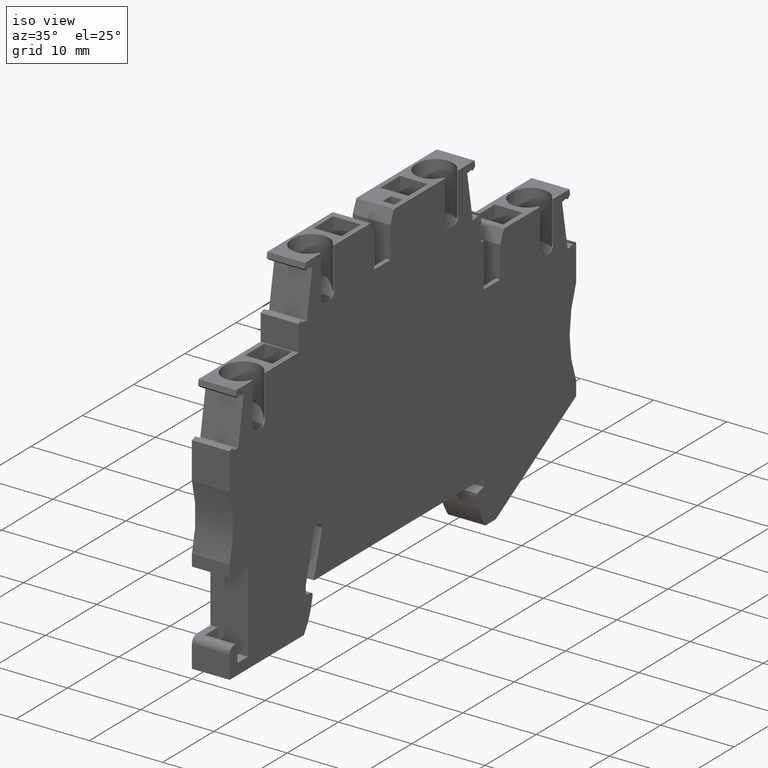
[diagram: clean part render]
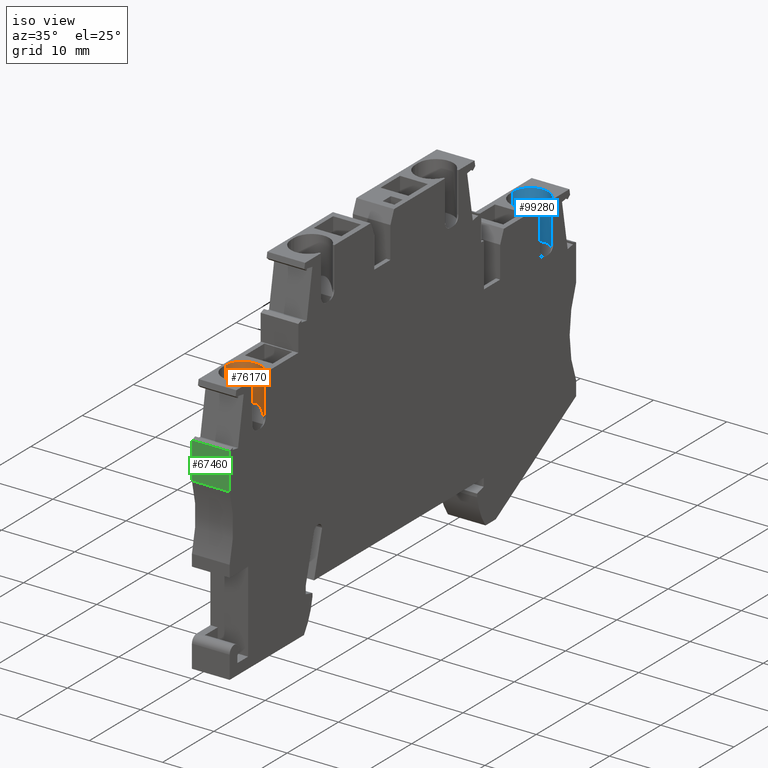
[diagram: same view with three faces highlighted in distinct colors, each labeled with its STEP entity id]
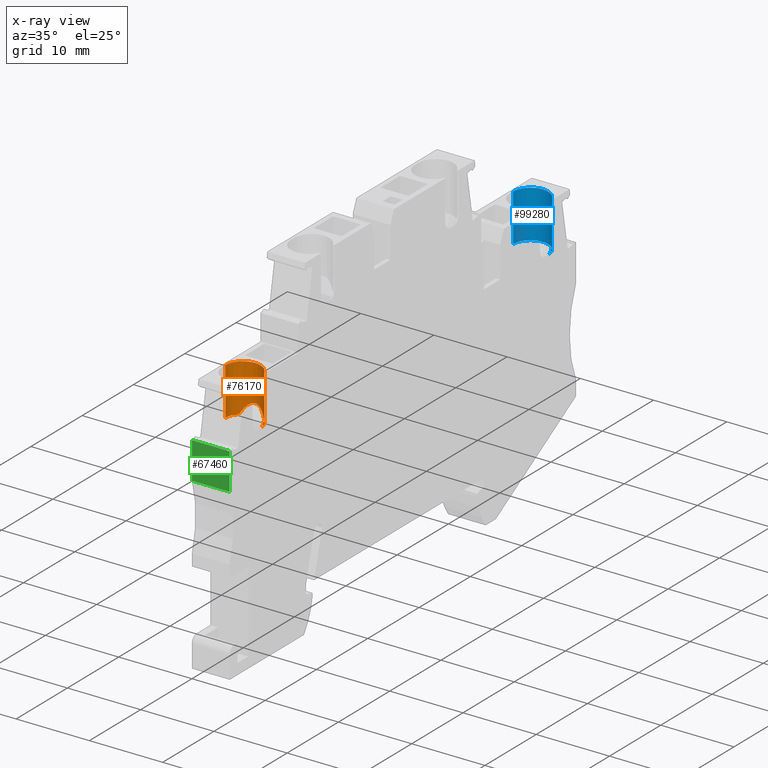
[diagram: x-ray of the same camera — body ghosted, the three highlighted faces saturated]
A machine part, iso view with three faces highlighted in distinct colors.
The next image is the same camera in x-ray (body ghosted, the three faces saturated) — at least one of them is partly hidden behind the body in this view.
Their STEP definitions:

[orange] entity #76170 — the highlighted cylindrical surface (edge-blend (fillet) strip) has radius 2.4 mm, axis along (-0, -0, -1).
#68870=CARTESIAN_POINT('',(142.353036999972,31.7467138221622,
53.4517424229271));
#68880=VERTEX_POINT('',#68870);
#68910=CARTESIAN_POINT('',(141.353036999972,31.7467138221623,51.27));
#68920=DIRECTION('',(1.17239551400417E-13,1.,0.));
#68930=DIRECTION('',(-1.,1.17239551400417E-13,0.));
#68940=AXIS2_PLACEMENT_3D('',#68910,#68920,#68930);
#68950=CIRCLE('',#68940,2.4);
#68960=CARTESIAN_POINT('',(141.353036999972,31.7467138221623,48.87));
#68970=VERTEX_POINT('',#68960);
#68980=EDGE_CURVE('',#68880,#68970,#68950,.T.);
#74540=CARTESIAN_POINT('',(141.353036999973,33.9010178221633,48.87));
#74550=DIRECTION('',(-1.17239551400417E-13,-1.,-1.38777878145543E-17));
#74560=VECTOR('',#74550,1.);
#74570=LINE('',#74540,#74560);
#74580=CARTESIAN_POINT('',(141.353036999972,25.2467138221637,48.87));
#74590=VERTEX_POINT('',#74580);
#74600=EDGE_CURVE('',#68970,#74590,#74570,.T.);
#74800=CARTESIAN_POINT('',(141.353036999972,33.9010178221633,51.27));
#74810=DIRECTION('',(-1.17239551400417E-13,-1.,0.));
#74820=DIRECTION('',(-1.,1.17239551400417E-13,0.));
#74830=AXIS2_PLACEMENT_3D('',#74800,#74810,#74820);
#74840=CYLINDRICAL_SURFACE('',#74830,2.4);
#74850=CARTESIAN_POINT('',(141.353036999972,25.2467138221647,
51.2699999999998));
#74860=DIRECTION('',(-8.67361737981714E-16,-1.,-1.38777878079272E-17));
#74870=DIRECTION('',(-1.,8.67361737981714E-16,1.20370621524251E-32));
#74880=AXIS2_PLACEMENT_3D('',#74850,#74860,#74870);
#74890=CIRCLE('',#74880,2.4000000000003);
#74900=CARTESIAN_POINT('',(143.040922309257,25.2467138221647,
52.97617794579));
#74910=VERTEX_POINT('',#74900);
#74920=CARTESIAN_POINT('',(141.353036999972,25.2467138221637,
53.6699999999996));
#74930=VERTEX_POINT('',#74920);
#74940=EDGE_CURVE('',#74910,#74930,#74890,.T.);
#74950=ORIENTED_EDGE('',*,*,#74940,.T.);
#74960=CARTESIAN_POINT('',(141.353036999972,21.6270320953753,
51.2699999999996));
#74970=DIRECTION('',(0.906307787036651,-0.422618261740698,0.));
#74980=DIRECTION('',(-0.422618261740698,-0.906307787036651,
-3.0624889262629E-17));
#74990=AXIS2_PLACEMENT_3D('',#74960,#74970,#74980);
#75000=ELLIPSE('',#74990,5.67888379956604,2.4);
#75010=CARTESIAN_POINT('',(143.040922309257,25.2467138221647,
49.5638220542094));
#75020=VERTEX_POINT('',#75010);
#75030=EDGE_CURVE('',#75020,#74910,#75000,.T.);
#75040=ORIENTED_EDGE('',*,*,#75030,.T.);
#75050=CARTESIAN_POINT('',(141.353036999972,25.2467138221647,
51.2699999999998));
#75060=DIRECTION('',(-8.67361737981714E-16,-1.,-1.38777878079272E-17));
#75070=DIRECTION('',(-1.,8.67361737981714E-16,1.20370621524251E-32));
#75080=AXIS2_PLACEMENT_3D('',#75050,#75060,#75070);
#75090=CIRCLE('',#75080,2.4000000000003);
#75100=EDGE_CURVE('',#74590,#75020,#75090,.T.);
#75110=ORIENTED_EDGE('',*,*,#75100,.T.);
#75120=ORIENTED_EDGE('',*,*,#74600,.T.);
#75130=ORIENTED_EDGE('',*,*,#68980,.T.);
#75140=CARTESIAN_POINT('',(142.353036999972,33.9010178221633,
53.4517424229268));
#75150=DIRECTION('',(-1.73472347596343E-15,-1.,-2.77555756158543E-17));
#75160=VECTOR('',#75150,1.);
#75170=LINE('',#75140,#75160);
#75180=CARTESIAN_POINT('',(142.353036999972,26.2467138221637,
53.4517424229268));
#75190=VERTEX_POINT('',#75180);
#75200=EDGE_CURVE('',#68880,#75190,#75170,.T.);
#75210=ORIENTED_EDGE('',*,*,#75200,.F.);
#75220=CARTESIAN_POINT('',(141.353036999971,26.2467138221637,53.67));
#75230=DIRECTION('',(0.,0.,1.));
#75240=DIRECTION('',(1.,0.,0.));
#75250=AXIS2_PLACEMENT_3D('',#75220,#75230,#75240);
#75260=CYLINDRICAL_SURFACE('',#75250,1.);
#75270=CARTESIAN_POINT('',(141.353036999972,33.9010178221633,
51.2699999999996));
#75280=DIRECTION('',(-1.73472347596343E-15,-1.,-2.77555756158543E-17));
#75290=DIRECTION('',(-1.,1.73472347596345E-15,-1.15490950136632E-13));
#75300=AXIS2_PLACEMENT_3D('',#75270,#75280,#75290);
#75310=CYLINDRICAL_SURFACE('',#75300,2.4);
#75320=CARTESIAN_POINT('',(141.353036999875,25.2467138221637,
53.6699999999996));
#75330=CARTESIAN_POINT('',(141.369558434636,25.2467138221621,
53.6700000000003));
#75340=CARTESIAN_POINT('',(141.386071491449,25.24712358397,
53.6698291800368));
#75350=CARTESIAN_POINT('',(141.402541328303,25.2479399130749,
53.6694893876562));
#75360=CARTESIAN_POINT('',(141.419010878255,25.2487562279595,
53.6691496011948));
#75370=CARTESIAN_POINT('',(141.435477242535,25.2499810673953,
53.6686400269279));
#75380=CARTESIAN_POINT('',(141.451906287999,25.251613393119,
53.6679626485588));
#75390=CARTESIAN_POINT('',(141.46833530514,25.2532457160287,
53.6672852713575));
#75400=CARTESIAN_POINT('',(141.484726637449,25.2552854985827,
53.6664401041467));
#75410=CARTESIAN_POINT('',(141.501045848591,25.2577277854927,
53.6654317733403));
#75420=CARTESIAN_POINT('',(141.517365064933,25.2601700731809,
53.6644234422127));
#75430=CARTESIAN_POINT('',(141.533611805706,25.2630148082034,
53.6632519768847));
#75440=CARTESIAN_POINT('',(141.549752537941,25.2662532175898,
53.6619245383414));
#75450=CARTESIAN_POINT('',(141.565898664924,25.269492709356,
53.6605966561258));
#75460=CARTESIAN_POINT('',(141.581914100052,25.2731198891082,
53.6591152421875));
#75470=CARTESIAN_POINT('',(141.597842064114,25.2771415037831,
53.6574820377478));
#75480=CARTESIAN_POINT('',(141.613770997057,25.2811633630884,
53.655848733962));
#75490=CARTESIAN_POINT('',(141.629606464846,25.2855794584105,
53.6540637411142));
#75500=CARTESIAN_POINT('',(141.645318689417,25.2903815504008,
53.6521358932717));
#75510=CARTESIAN_POINT('',(141.661030888261,25.2951836345286,
53.6502080485857));
#75520=CARTESIAN_POINT('',(141.676619567056,25.300371638643,
53.6481373885037));
#75530=CARTESIAN_POINT('',(141.69205540991,25.3059340829457,
53.6459348723652));
#75540=CARTESIAN_POINT('',(141.707491252095,25.3114965270073,
53.6437323563221));
#75550=CARTESIAN_POINT('',(141.722773998876,25.3174333151548,
53.6413980331063));
#75560=CARTESIAN_POINT('',(141.737875691944,25.323729975522,
53.638944739997));
#75570=CARTESIAN_POINT('',(141.75297740686,25.3300266449991,
53.6364914433385));
#75580=CARTESIAN_POINT('',(141.767897832742,25.3366830763485,
53.6339192319712));
#75590=CARTESIAN_POINT('',(141.782611121907,25.3436822204113,
53.6312424851679));
#75600=CARTESIAN_POINT('',(141.797323884663,25.3506811140603,
53.6285658341327));
#75610=CARTESIAN_POINT('',(141.81182108896,25.3580168982445,
53.6257867490194));
#75620=CARTESIAN_POINT('',(141.826164334856,25.3657197671409,
53.6229025744777));
#75630=CARTESIAN_POINT('',(141.854839667847,25.3811195122329,
53.617136469233));
#75640=CARTESIAN_POINT('',(141.882788138797,25.3979360364772,
53.6109691822124));
#75650=CARTESIAN_POINT('',(141.909832120553,25.416063959886,
53.6045190497603));
#75660=CARTESIAN_POINT('',(141.936875936981,25.434191772473,
53.5980689567399));
#75670=CARTESIAN_POINT('',(141.963010715632,25.4536280127283,
53.5913374900356));
#75680=CARTESIAN_POINT('',(141.988078025979,25.474235411275,
53.5844595255232));
#75690=CARTESIAN_POINT('',(142.013145533675,25.4948429720591,
53.5775815068622));
#75700=CARTESIAN_POINT('',(142.03714190585,25.5166183738107,
53.5705585396599));
#75710=CARTESIAN_POINT('',(142.059939771227,25.5394030898887,
53.5635318772561));
#75720=CARTESIAN_POINT('',(142.082735326659,25.562185497354,
53.5565059268139));
#75730=CARTESIAN_POINT('',(142.104511662498,25.5861557926917,
53.5494208392692));
#75740=CARTESIAN_POINT('',(142.125115665738,25.6111868488032,
53.5424204130986));
#75750=CARTESIAN_POINT('',(142.145719492319,25.6362176902993,
53.5354200469494));
#75760=CARTESIAN_POINT('',(142.165147916071,25.6623058254409,
53.5285058945174));
#75770=CARTESIAN_POINT('',(142.183269111857,25.6892959892998,
53.5218247357184));
#75780=CARTESIAN_POINT('',(142.201390400791,25.7162862918967,
53.5151435425762));
#75790=CARTESIAN_POINT('',(142.218201849095,25.744174571247,
53.5086969068355));
#75800=CARTESIAN_POINT('',(142.233601981878,25.7727883927544,
53.5026229669695));
#75810=CARTESIAN_POINT('',(142.241305671106,25.7871020348274,
53.4995845681596));
#75820=CARTESIAN_POINT('',(142.248641293409,25.8015647806635,
53.4966454775671));
#75830=CARTESIAN_POINT('',(142.25564502159,25.8162503982709,
53.493802769876));
#75840=CARTESIAN_POINT('',(142.262649680831,25.8309379681525,
53.4909596842816));
#75850=CARTESIAN_POINT('',(142.269318174812,25.8458439346614,
53.488214503379));
#75860=CARTESIAN_POINT('',(142.275631835308,25.8609434632573,
53.4855854237221));
#75870=CARTESIAN_POINT('',(142.281945476785,25.876042946369,
53.4829563519847));
#75880=CARTESIAN_POINT('',(142.287904168085,25.8913357659446,
53.480443453205));
#75890=CARTESIAN_POINT('',(142.293491527529,25.9067942999289,
53.4780636950947));
#75900=CARTESIAN_POINT('',(142.299078878545,25.922252810594,
53.4756839405743));
#75910=CARTESIAN_POINT('',(142.304294789969,25.9378767747443,
53.4734373958053));
#75920=CARTESIAN_POINT('',(142.309125723193,25.9536364376226,
53.4713392181416));
#75930=CARTESIAN_POINT('',(142.313956656768,25.9693961016494,
53.4692410403251));
#75940=CARTESIAN_POINT('',(142.318402518765,25.9852911713564,
53.4672912916556));
#75950=CARTESIAN_POINT('',(142.32245302295,26.0012905665562,
53.4655028067374));
#75960=CARTESIAN_POINT('',(142.326503534474,26.0172899907489,
53.4637143185783));
#75970=CARTESIAN_POINT('',(142.330158615475,26.0333934220883,
53.4620871444252));
#75980=CARTESIAN_POINT('',(142.333411465366,26.0495694395335,
53.4606313947357));
#75990=CARTESIAN_POINT('',(142.336664327555,26.065745518137,
53.4591756395423));
#76000=CARTESIAN_POINT('',(142.339514913142,26.0819938507755,
53.4578913426987));
#76010=CARTESIAN_POINT('',(142.341959920859,26.0982838503136,
53.4567856448547));
#76020=CARTESIAN_POINT('',(142.34440366112,26.11456540536,
53.4556805201878));
#76030=CARTESIAN_POINT('',(142.346446949573,26.1309120890614,
53.4547516862077));
#76040=CARTESIAN_POINT('',(142.348089585236,26.1473641741619,
53.4540032858393));
#76050=CARTESIAN_POINT('',(142.349731625785,26.163810298799,
53.4532551566107));
#76060=CARTESIAN_POINT('',(142.350969498606,26.1803361612847,
53.4526890649064));
#76070=CARTESIAN_POINT('',(142.351795855156,26.1969067022949,
53.4523108736357));
#76080=CARTESIAN_POINT('',(142.352622208775,26.2134771845152,
53.4519326837068));
#76090=CARTESIAN_POINT('',(142.353036999971,26.230091914123,
53.4517424229269));
#76100=CARTESIAN_POINT('',(142.353036999971,26.2467138221636,
53.4517424229269));
#76110=B_SPLINE_CURVE_WITH_KNOTS('',3,(#75320,#75330,#75340,#75350,
#75360,#75370,#75380,#75390,#75400,#75410,#75420,#75430,#75440,#75450,
#75460,#75470,#75480,#75490,#75500,#75510,#75520,#75530,#75540,#75550,
#75560,#75570,#75580,#75590,#75600,#75610,#75620,#75630,#75640,#75650,
#75660,#75670,#75680,#75690,#75700,#75710,#75720,#75730,#75740,#75750,
#75760,#75770,#75780,#75790,#75800,#75810,#75820,#75830,#75840,#75850,
#75860,#75870,#75880,#75890,#75900,#75910,#75920,#75930,#75940,#75950,
#75960,#75970,#75980,#75990,#76000,#76010,#76020,#76030,#76040,#76050,
#76060,#76070,#76080,#76090,#76100),.UNSPECIFIED.,.F.,.F.,(4,3,3,3,3,3,3
,3,3,3,3,3,3,3,3,3,3,3,3,3,3,3,3,3,3,3,4),(0.,0.0495280786792929,
0.0990589806897442,0.148648000958443,0.198225222811811,0.24773741042608,
0.297320333799932,0.346971139635798,0.396625840512446,0.446216117482405,
0.495739799518868,0.595141583437265,0.69472276529884,0.794001777763757,
0.893268480183436,0.992840716617947,1.09224338316428,1.14177252706417,
1.19142114262478,1.24120449888939,1.29104814742862,1.34087954797426,
1.39063143727527,1.44024543490943,1.4897912574439,1.53950719403879,
1.58933925083112),.UNSPECIFIED.);
#76120=SURFACE_CURVE('',#76110,(#75260,#75310),.CURVE_3D.);
#76130=EDGE_CURVE('',#74930,#75190,#76120,.T.);
#76140=ORIENTED_EDGE('',*,*,#76130,.T.);
#76150=EDGE_LOOP('',(#76140,#75210,#75130,#75120,#75110,#75040,#74950));
#76160=FACE_OUTER_BOUND('',#76150,.T.);
#76170=ADVANCED_FACE('',(#76160),#74840,.F.);

[blue] entity #99280 — the highlighted cylindrical surface (edge-blend (fillet) strip) has radius 2.4 mm, axis along (0, 0, 1).
#9670=CARTESIAN_POINT('',(197.453037000004,25.2467138221757,48.87));
#9680=VERTEX_POINT('',#9670);
#9710=CARTESIAN_POINT('',(197.453037000004,25.2467138221754,51.27));
#9720=DIRECTION('',(5.49976730823754E-14,1.,1.38777878011634E-17));
#9730=DIRECTION('',(1.,-5.49976730823754E-14,-7.6324603659496E-31));
#9740=AXIS2_PLACEMENT_3D('',#9710,#9720,#9730);
#9750=CIRCLE('',#9740,2.40000000000035);
#9760=CARTESIAN_POINT('',(197.453037000004,25.2467138221743,53.67));
#9770=VERTEX_POINT('',#9760);
#9780=EDGE_CURVE('',#9770,#9680,#9750,.T.);
#24120=CARTESIAN_POINT('',(198.453037000005,31.746713822173,
53.4517424229269));
#24130=VERTEX_POINT('',#24120);
#24160=CARTESIAN_POINT('',(197.453037000005,31.746713822173,51.27));
#24170=DIRECTION('',(0.,1.,0.));
#24180=DIRECTION('',(1.,0.,0.));
#24190=AXIS2_PLACEMENT_3D('',#24160,#24170,#24180);
#24200=CIRCLE('',#24190,2.4);
#24210=CARTESIAN_POINT('',(197.453037000005,31.746713822173,48.87));
#24220=VERTEX_POINT('',#24210);
#24230=EDGE_CURVE('',#24130,#24220,#24200,.T.);
#97990=CARTESIAN_POINT('',(197.453037000005,24.9510178221757,48.87));
#98000=DIRECTION('',(1.59094652935877E-30,1.,1.38777878075117E-17));
#98010=VECTOR('',#98000,1.);
#98020=LINE('',#97990,#98010);
#98030=EDGE_CURVE('',#9680,#24220,#98020,.T.);
#98170=CARTESIAN_POINT('',(197.453037000005,24.9510178221757,51.27));
#98180=DIRECTION('',(0.,1.,0.));
#98190=DIRECTION('',(1.,0.,0.));
#98200=AXIS2_PLACEMENT_3D('',#98170,#98180,#98190);
#98210=CYLINDRICAL_SURFACE('',#98200,2.4);
#98220=ORIENTED_EDGE('',*,*,#9780,.F.);
#98230=ORIENTED_EDGE('',*,*,#98030,.F.);
#98240=ORIENTED_EDGE('',*,*,#24230,.T.);
#98250=CARTESIAN_POINT('',(198.453037000005,24.9510178221742,
53.4517424229266));
#98260=DIRECTION('',(1.09995346164751E-13,1.,2.77555756023267E-17));
#98270=VECTOR('',#98260,1.);
#98280=LINE('',#98250,#98270);
#98290=CARTESIAN_POINT('',(198.453037000005,26.2467138221744,
53.4517424229266));
#98300=VERTEX_POINT('',#98290);
#98310=EDGE_CURVE('',#98300,#24130,#98280,.T.);
#98320=ORIENTED_EDGE('',*,*,#98310,.T.);
#98330=CARTESIAN_POINT('',(197.453037000006,26.2467138221757,53.67));
#98340=DIRECTION('',(0.,0.,1.));
#98350=DIRECTION('',(1.,0.,0.));
#98360=AXIS2_PLACEMENT_3D('',#98330,#98340,#98350);
#98370=CYLINDRICAL_SURFACE('',#98360,1.);
#98380=CARTESIAN_POINT('',(197.453037000004,24.9510178221743,51.27));
#98390=DIRECTION('',(1.09995346164751E-13,1.,2.77555756023268E-17));
#98400=DIRECTION('',(1.,-1.09995346164751E-13,-1.15379927834169E-13));
#98410=AXIS2_PLACEMENT_3D('',#98380,#98390,#98400);
#98420=CYLINDRICAL_SURFACE('',#98410,2.4);
#98430=CARTESIAN_POINT('',(198.453037000006,26.2467138231973,
53.4517424229264));
#98440=CARTESIAN_POINT('',(198.453037000023,26.2300919151468,
53.4517424229186));
#98450=CARTESIAN_POINT('',(198.452622208843,26.2134771855283,
53.4519326836909));
#98460=CARTESIAN_POINT('',(198.45179585524,26.1969067032966,
53.4523108736126));
#98470=CARTESIAN_POINT('',(198.450969498705,26.1803361622726,
53.4526890648761));
#98480=CARTESIAN_POINT('',(198.4497316259,26.1638102997749,
53.4532551565735));
#98490=CARTESIAN_POINT('',(198.448089585366,26.1473641751275,
53.4540032857955));
#98500=CARTESIAN_POINT('',(198.446446949717,26.1309120900153,
53.4547516861572));
#98510=CARTESIAN_POINT('',(198.444403661278,26.114565406298,
53.4556805201312));
#98520=CARTESIAN_POINT('',(198.441959921031,26.0982838512419,
53.4567856447919));
#98530=CARTESIAN_POINT('',(198.439514913328,26.0819938516948,
53.4578913426298));
#98540=CARTESIAN_POINT('',(198.436664327754,26.0657455190448,
53.4591756394676));
#98550=CARTESIAN_POINT('',(198.433411465577,26.0495694404272,
53.4606313946558));
#98560=CARTESIAN_POINT('',(198.430158615699,26.03339342297,
53.4620871443399));
#98570=CARTESIAN_POINT('',(198.426503534711,26.017289991618,
53.4637143184881));
#98580=CARTESIAN_POINT('',(198.422453023198,26.0012905674124,
53.4655028066426));
#98590=CARTESIAN_POINT('',(198.418402519026,25.9852911722031,
53.4672912915557));
#98600=CARTESIAN_POINT('',(198.41395665704,25.9693961024825,
53.4692410402209));
#98610=CARTESIAN_POINT('',(198.409125723473,25.9536364384387,
53.4713392180341));
#98620=CARTESIAN_POINT('',(198.40429479026,25.9378767755467,
53.4734373956939));
#98630=CARTESIAN_POINT('',(198.399078878845,25.9222528113822,
53.4756839404595));
#98640=CARTESIAN_POINT('',(198.393491527839,25.9067943007028,
53.4780636949769));
#98650=CARTESIAN_POINT('',(198.387904168405,25.8913357667072,
53.4804434530837));
#98660=CARTESIAN_POINT('',(198.381945477114,25.8760429471171,
53.4829563518608));
#98670=CARTESIAN_POINT('',(198.375631835642,25.8609434639872,
53.4855854235966));
#98680=CARTESIAN_POINT('',(198.369318175155,25.8458439353793,
53.4882145032509));
#98690=CARTESIAN_POINT('',(198.362649681182,25.8309379688552,
53.4909596841517));
#98700=CARTESIAN_POINT('',(198.355645021945,25.8162503989557,
53.4938027697454));
#98710=CARTESIAN_POINT('',(198.34864129377,25.8015647813324,
53.4966454774352));
#98720=CARTESIAN_POINT('',(198.341305671473,25.7871020354835,
53.4995845680263));
#98730=CARTESIAN_POINT('',(198.333601982251,25.7727883933968,
53.5026229668352));
#98740=CARTESIAN_POINT('',(198.318201849522,25.7441745719394,
53.508696906683));
#98750=CARTESIAN_POINT('',(198.301390401235,25.7162862925568,
53.5151435424215));
#98760=CARTESIAN_POINT('',(198.283269112259,25.6892959898595,
53.5218247355825));
#98770=CARTESIAN_POINT('',(198.265147916502,25.6623058260054,
53.5285058943742));
#98780=CARTESIAN_POINT('',(198.245719492758,25.6362176908335,
53.5354200468077));
#98790=CARTESIAN_POINT('',(198.225115666154,25.6111868492796,
53.5424204129684));
#98800=CARTESIAN_POINT('',(198.204511662911,25.586155793132,
53.5494208391444));
#98810=CARTESIAN_POINT('',(198.182735327071,25.5621854977676,
53.5565059266932));
#98820=CARTESIAN_POINT('',(198.159939771645,25.5394030902838,
53.5635318771377));
#98830=CARTESIAN_POINT('',(198.137141906232,25.5166183741459,
53.5705585395566));
#98840=CARTESIAN_POINT('',(198.113145534053,25.4948429723736,
53.5775815067635));
#98850=CARTESIAN_POINT('',(198.088078026391,25.4742354115976,
53.5844595254194));
#98860=CARTESIAN_POINT('',(198.063010716041,25.4536280130273,
53.5913374899372));
#98870=CARTESIAN_POINT('',(198.036875937383,25.4341917727487,
53.5980689566476));
#98880=CARTESIAN_POINT('',(198.009832120948,25.4160639601397,
53.6045190496742));
#98890=CARTESIAN_POINT('',(197.982788139184,25.3979360367086,
53.6109691821326));
#98900=CARTESIAN_POINT('',(197.954839668225,25.3811195124434,
53.6171364691597));
#98910=CARTESIAN_POINT('',(197.926164335222,25.3657197673314,
53.6229025744108));
#98920=CARTESIAN_POINT('',(197.911821089321,25.358016898425,
53.6257867489557));
#98930=CARTESIAN_POINT('',(197.897323885018,25.3506811142312,
53.6285658340723));
#98940=CARTESIAN_POINT('',(197.882611122257,25.3436822205734,
53.6312424851105));
#98950=CARTESIAN_POINT('',(197.867897833086,25.3366830765018,
53.6339192319168));
#98960=CARTESIAN_POINT('',(197.852977407198,25.3300266451434,
53.6364914432872));
#98970=CARTESIAN_POINT('',(197.837875692275,25.3237299756581,
53.6389447399487));
#98980=CARTESIAN_POINT('',(197.822773999199,25.3174333152813,
53.6413980330614));
#98990=CARTESIAN_POINT('',(197.807491252412,25.311496527126,
53.6437323562801));
#99000=CARTESIAN_POINT('',(197.792055410222,25.3059340830576,
53.6459348723257));
#99010=CARTESIAN_POINT('',(197.77661956736,25.3003716387472,
53.6481373884671));
#99020=CARTESIAN_POINT('',(197.761030888558,25.2951836346255,
53.6502080485519));
#99030=CARTESIAN_POINT('',(197.745318689706,25.2903815504907,
53.6521358932405));
#99040=CARTESIAN_POINT('',(197.729606465128,25.2855794584934,
53.6540637410857));
#99050=CARTESIAN_POINT('',(197.713770997331,25.2811633631647,
53.655848733936));
#99060=CARTESIAN_POINT('',(197.697842064379,25.2771415038533,
53.6574820377243));
#99070=CARTESIAN_POINT('',(197.681914100304,25.2731198891711,
53.659115242167));
#99080=CARTESIAN_POINT('',(197.665898665167,25.2694927094135,
53.6605966561074));
#99090=CARTESIAN_POINT('',(197.649752538181,25.2662532176431,
53.6619245383247));
#99100=CARTESIAN_POINT('',(197.633611805939,25.2630148082519,
53.6632519768699));
#99110=CARTESIAN_POINT('',(197.617365065158,25.2601700732244,
53.6644234421999));
#99120=CARTESIAN_POINT('',(197.601045848805,25.2577277855315,
53.6654317733295));
#99130=CARTESIAN_POINT('',(197.584726637654,25.2552854986172,
53.6664401041376));
#99140=CARTESIAN_POINT('',(197.568335305336,25.2532457160593,
53.66728527135));
#99150=CARTESIAN_POINT('',(197.551906288186,25.2516133931461,
53.6679626485528));
#99160=CARTESIAN_POINT('',(197.535477242712,25.249981067419,
53.6686400269233));
#99170=CARTESIAN_POINT('',(197.519010878423,25.2487562279802,
53.6691496011914));
#99180=CARTESIAN_POINT('',(197.502541328461,25.2479399130931,
53.669489387654));
#99190=CARTESIAN_POINT('',(197.486071491597,25.2471235839856,
53.6698291800356));
#99200=CARTESIAN_POINT('',(197.469558434775,25.2467138221757,53.67));
#99210=CARTESIAN_POINT('',(197.453037000005,25.2467138221757,53.67));
#99220=B_SPLINE_CURVE_WITH_KNOTS('',3,(#98430,#98440,#98450,#98460,
#98470,#98480,#98490,#98500,#98510,#98520,#98530,#98540,#98550,#98560,
#98570,#98580,#98590,#98600,#98610,#98620,#98630,#98640,#98650,#98660,
#98670,#98680,#98690,#98700,#98710,#98720,#98730,#98740,#98750,#98760,
#98770,#98780,#98790,#98800,#98810,#98820,#98830,#98840,#98850,#98860,
#98870,#98880,#98890,#98900,#98910,#98920,#98930,#98940,#98950,#98960,
#98970,#98980,#98990,#99000,#99010,#99020,#99030,#99040,#99050,#99060,
#99070,#99080,#99090,#99100,#99110,#99120,#99130,#99140,#99150,#99160,
#99170,#99180,#99190,#99200,#99210),.UNSPECIFIED.,.F.,.F.,(4,3,3,3,3,3,3
,3,3,3,3,3,3,3,3,3,3,3,3,3,3,3,3,3,3,3,4),(0.,0.0498320568228401,
0.0995479934495394,0.149093816014766,0.198707813674722,0.248459703002608
,0.298291103576338,0.348134752144852,0.39791810843995,0.447566724032029,
0.497095867960217,0.596498534561458,0.696070771054167,0.795337473534507,
0.894616486054082,0.99419766797317,1.09359945195094,1.14312313401649,
1.19271341101445,1.24236811191985,1.29201891778475,1.34160184118779,
1.39111402883074,1.4406912507127,1.4902802710102,1.53981117304968,
1.58933925175752),.UNSPECIFIED.);
#99230=SURFACE_CURVE('',#99220,(#98370,#98420),.CURVE_3D.);
#99240=EDGE_CURVE('',#98300,#9770,#99230,.T.);
#99250=ORIENTED_EDGE('',*,*,#99240,.F.);
#99260=EDGE_LOOP('',(#99250,#98320,#98240,#98230,#98220));
#99270=FACE_OUTER_BOUND('',#99260,.T.);
#99280=ADVANCED_FACE('',(#99270),#98210,.F.);

[green] entity #67460 — the highlighted planar face has unit normal (-0, 1, -0).
#4780=CARTESIAN_POINT('',(135.328037322701,24.7030733168878,48.52));
#4790=VERTEX_POINT('',#4780);
#4820=CARTESIAN_POINT('',(135.328037322701,-15.176449,48.52));
#4830=DIRECTION('',(6.93889390390723E-17,1.,0.));
#4840=VECTOR('',#4830,1.);
#4850=LINE('',#4820,#4840);
#4860=CARTESIAN_POINT('',(135.328037322701,19.6967137777626,48.52));
#4870=VERTEX_POINT('',#4860);
#4880=EDGE_CURVE('',#4870,#4790,#4850,.T.);
#67160=CARTESIAN_POINT('',(135.328037322701,19.9942043761298,53.67));
#67170=DIRECTION('',(1.,-6.93889390390723E-17,0.));
#67180=DIRECTION('',(-6.93889390390723E-17,-1.,0.));
#67190=AXIS2_PLACEMENT_3D('',#67160,#67170,#67180);
#67200=PLANE('',#67190);
#67210=CARTESIAN_POINT('',(135.328037322701,-15.176449,53.67));
#67220=DIRECTION('',(6.93889390390723E-17,1.,0.));
#67230=VECTOR('',#67220,1.);
#67240=LINE('',#67210,#67230);
#67250=CARTESIAN_POINT('',(135.328037322701,19.6967137777626,53.67));
#67260=VERTEX_POINT('',#67250);
#67270=CARTESIAN_POINT('',(135.328037322701,24.7030733168878,53.67));
#67280=VERTEX_POINT('',#67270);
#67290=EDGE_CURVE('',#67260,#67280,#67240,.T.);
#67300=ORIENTED_EDGE('',*,*,#67290,.T.);
#67310=CARTESIAN_POINT('',(135.328037322701,19.6967137777626,53.67));
#67320=DIRECTION('',(0.,0.,1.));
#67330=VECTOR('',#67320,1.);
#67340=LINE('',#67310,#67330);
#67350=EDGE_CURVE('',#4870,#67260,#67340,.T.);
#67360=ORIENTED_EDGE('',*,*,#67350,.T.);
#67370=ORIENTED_EDGE('',*,*,#4880,.F.);
#67380=CARTESIAN_POINT('',(135.328037322701,24.7030733168878,53.67));
#67390=DIRECTION('',(0.,0.,1.));
#67400=VECTOR('',#67390,1.);
#67410=LINE('',#67380,#67400);
#67420=EDGE_CURVE('',#4790,#67280,#67410,.T.);
#67430=ORIENTED_EDGE('',*,*,#67420,.F.);
#67440=EDGE_LOOP('',(#67430,#67370,#67360,#67300));
#67450=FACE_OUTER_BOUND('',#67440,.T.);
#67460=ADVANCED_FACE('',(#67450),#67200,.F.);